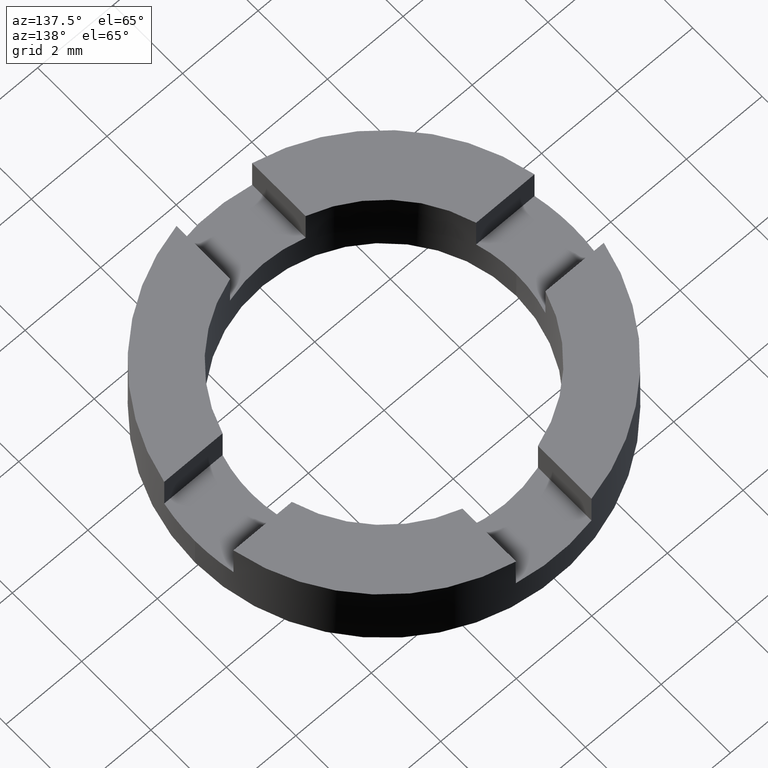
[diagram: clean part render]
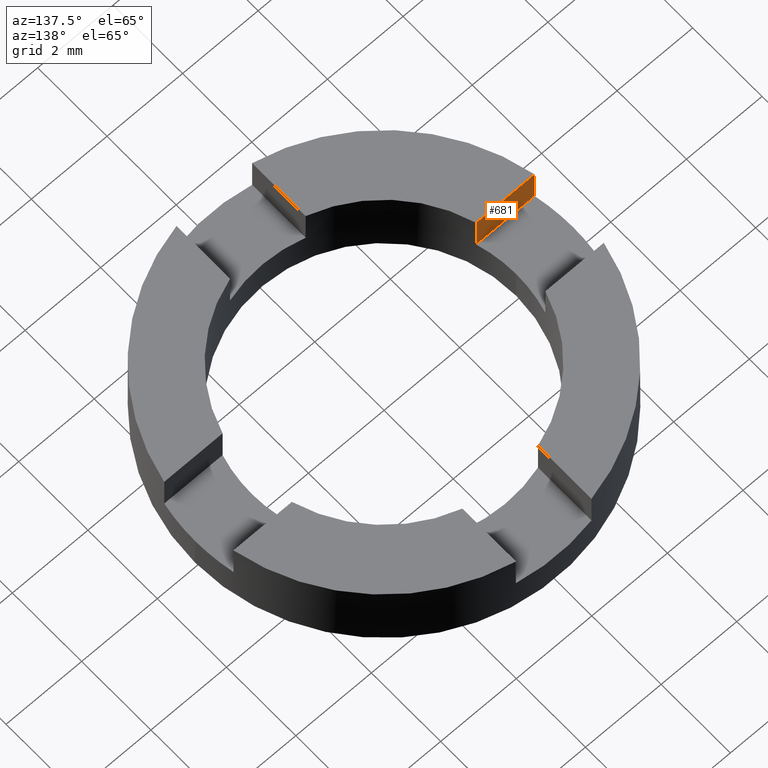
[diagram: same view with one face highlighted and labeled with its STEP entity id]
A machine part, auxiliary view. The second image highlights one B-rep face of the part: STEP entity #681.
In plain terms, the highlighted planar face has unit normal (0, -1, 0).
Its self-contained STEP definition (entity closure, byte-faithful):
#7 = ORIENTED_EDGE ( 'NONE', *, *, #703, .T. ) ;
#54 = VECTOR ( 'NONE', #416, 1000.000000000000000 ) ;
#63 = LINE ( 'NONE', #535, #54 ) ;
#68 = CARTESIAN_POINT ( 'NONE',  ( -3.354101966249594557, -1.000000000000301981, 2.000000000000000000 ) ) ;
#88 = FACE_OUTER_BOUND ( 'NONE', #204, .T. ) ;
#109 = VERTEX_POINT ( 'NONE', #123 ) ;
#116 = EDGE_CURVE ( 'NONE', #600, #436, #731, .T. ) ;
#123 = CARTESIAN_POINT ( 'NONE',  ( -3.354101966249594557, -1.000000000000301981, 2.000000000000000000 ) ) ;
#163 = ORIENTED_EDGE ( 'NONE', *, *, #173, .F. ) ;
#173 = EDGE_CURVE ( 'NONE', #436, #467, #63, .T. ) ;
#185 = VECTOR ( 'NONE', #423, 1000.000000000000000 ) ;
#186 = EDGE_CURVE ( 'NONE', #109, #467, #661, .T. ) ;
#188 = LINE ( 'NONE', #553, #185 ) ;
#192 = CARTESIAN_POINT ( 'NONE',  ( -4.898979485566295367, -1.000000000000302425, 2.000000000000000000 ) ) ;
#204 = EDGE_LOOP ( 'NONE', ( #7, #685, #163, #559 ) ) ;
#243 = DIRECTION ( 'NONE',  ( 1.000000000000000000, 2.558646401551673950E-16, 0.000000000000000000 ) ) ;
#349 = CARTESIAN_POINT ( 'NONE',  ( -3.354101966249594557, -1.000000000000301981, 1.000000000000000000 ) ) ;
#416 = DIRECTION ( 'NONE',  ( 1.000000000000000000, 2.558646401551673950E-16, -0.000000000000000000 ) ) ;
#423 = DIRECTION ( 'NONE',  ( 1.000000000000000000, 2.558646401551673950E-16, -0.000000000000000000 ) ) ;
#436 = VERTEX_POINT ( 'NONE', #607 ) ;
#444 = CARTESIAN_POINT ( 'NONE',  ( -3.305037895305852125, -1.000000000000301981, 1.000000000000000000 ) ) ;
#467 = VERTEX_POINT ( 'NONE', #349 ) ;
#503 = VECTOR ( 'NONE', #773, 1000.000000000000000 ) ;
#535 = CARTESIAN_POINT ( 'NONE',  ( -3.305037895305852125, -1.000000000000301981, 1.000000000000000000 ) ) ;
#553 = CARTESIAN_POINT ( 'NONE',  ( -3.305037895305852125, -1.000000000000301981, 2.000000000000000000 ) ) ;
#559 = ORIENTED_EDGE ( 'NONE', *, *, #116, .F. ) ;
#569 = AXIS2_PLACEMENT_3D ( 'NONE', #444, #783, #243 ) ;
#582 = VECTOR ( 'NONE', #601, 1000.000000000000000 ) ;
#600 = VERTEX_POINT ( 'NONE', #726 ) ;
#601 = DIRECTION ( 'NONE',  ( -0.000000000000000000, -0.000000000000000000, -1.000000000000000000 ) ) ;
#607 = CARTESIAN_POINT ( 'NONE',  ( -4.898979485566295367, -1.000000000000302425, 1.000000000000000000 ) ) ;
#610 = PLANE ( 'NONE',  #569 ) ;
#661 = LINE ( 'NONE', #68, #503 ) ;
#681 = ADVANCED_FACE ( 'NONE', ( #88 ), #610, .F. ) ;
#685 = ORIENTED_EDGE ( 'NONE', *, *, #186, .T. ) ;
#703 = EDGE_CURVE ( 'NONE', #600, #109, #188, .T. ) ;
#726 = CARTESIAN_POINT ( 'NONE',  ( -4.898979485566295367, -1.000000000000302425, 2.000000000000000000 ) ) ;
#731 = LINE ( 'NONE', #192, #582 ) ;
#773 = DIRECTION ( 'NONE',  ( -0.000000000000000000, -0.000000000000000000, -1.000000000000000000 ) ) ;
#783 = DIRECTION ( 'NONE',  ( 2.558646401551673950E-16, -1.000000000000000000, 0.000000000000000000 ) ) ;